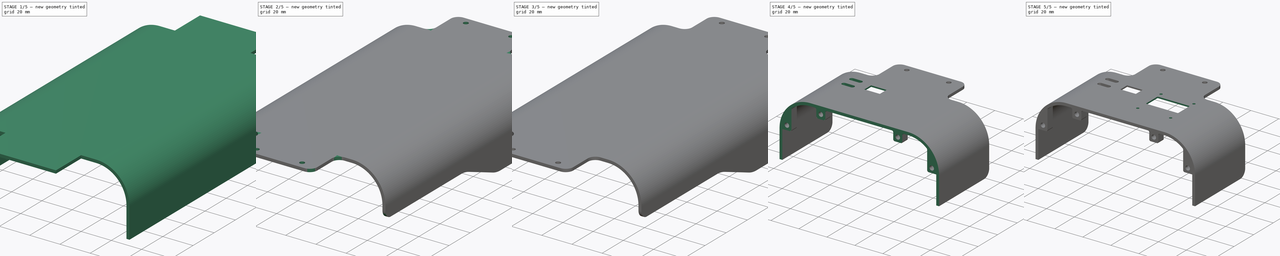
[diagram: build sequence overview — one tinted view per stage of 5, left to right]
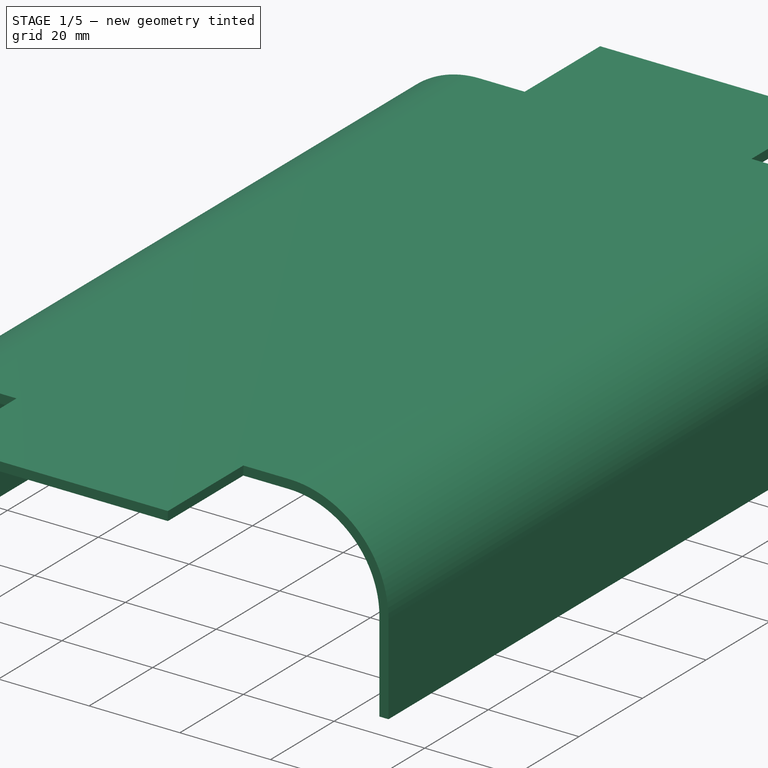
[diagram: stage 1 of 5 — iso view after this stage's code; geometry added in this stage tinted green]
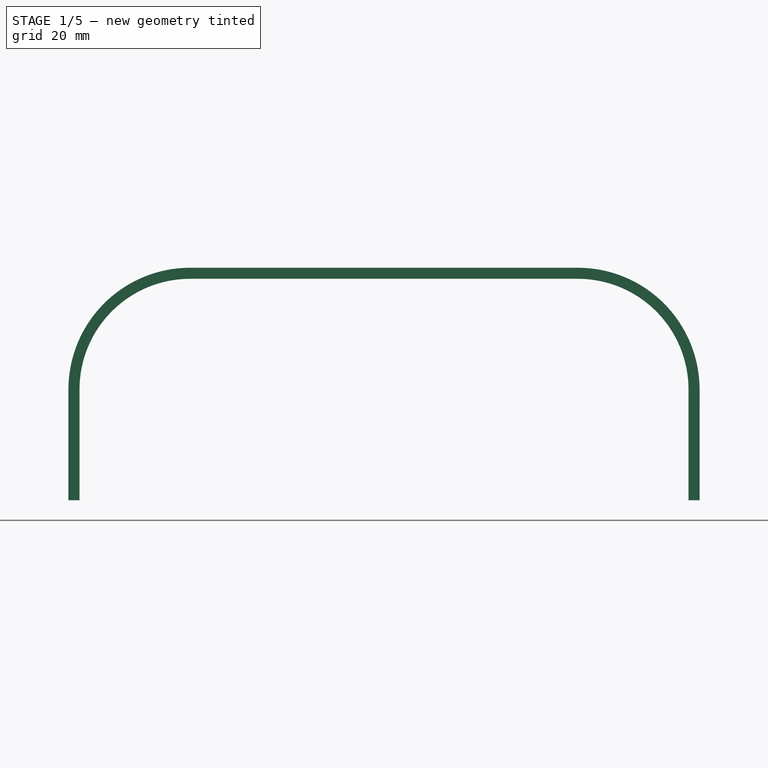
[diagram: stage 1 of 5 — front view after this stage's code; geometry added in this stage tinted green]
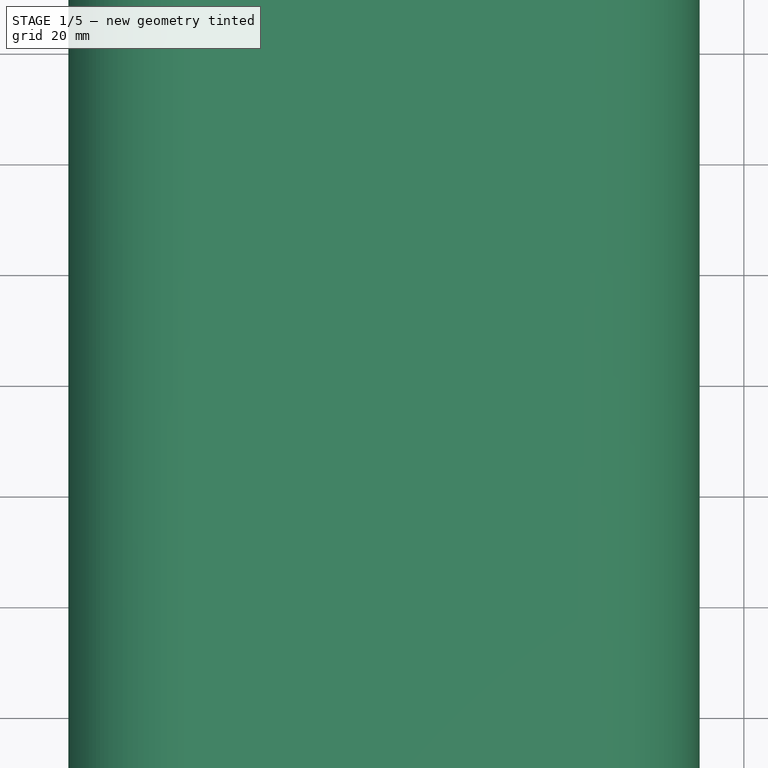
[diagram: stage 1 of 5 — top view after this stage's code; geometry added in this stage tinted green]
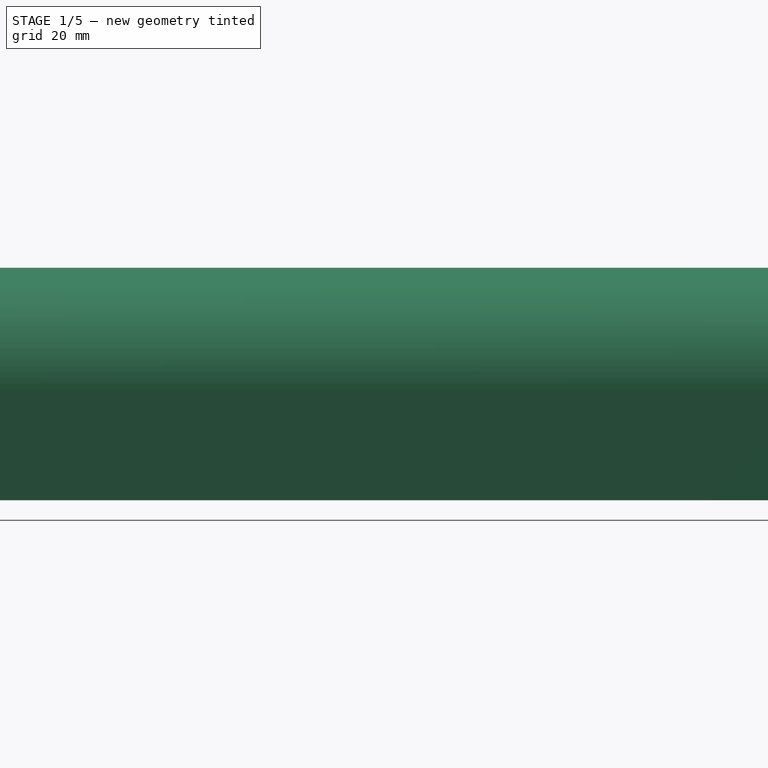
[diagram: stage 1 of 5 — right view after this stage's code; geometry added in this stage tinted green]
FCSTD DOCUMENT  (FreeCAD 0.19R22894 (Git))
Label: Top_Cover_Split_Rear_with_OLED
License: All rights reserved
LicenseURL: http://en.wikipedia.org/wiki/All_rights_reserved
objects: Sketcher::SketchObject×16, PartDesign::Pocket×13, PartDesign::Pad×5, PartDesign::Fillet×5, PartDesign::Thickness×1, PartDesign::Chamfer×1, PartDesign::Body×1
note: 67 computed .brp shape members not serialized (recipe doc carries the construction recipe); baked Part::Feature solids carry a one-line shape summary decoded from their .brp

FEATURE [Sketcher::SketchObject] Sketch459
  MapMode = 5
  Placement = pos=(0,0,0) rot=(1,0,0;1.5708rad)
  Support = -> [XZ_Plane232]
  sketch-geometry (6):
    g0: LineSegment StartX=20 StartY=40 StartZ=0 EndX=90 EndY=40 EndZ=0
    g1: LineSegment StartX=110 StartY=20 StartZ=0 EndX=110 EndY=0 EndZ=0
    g2: LineSegment StartX=110 StartY=0 StartZ=0 EndX=0 EndY=0 EndZ=0
    g3: LineSegment StartX=0 StartY=0 StartZ=0 EndX=0 EndY=20 EndZ=0
    g4: ArcOfCircle CenterX=20 CenterY=20 CenterZ=0 NormalX=0 NormalY=0 NormalZ=1 AngleXU=0 Radius=20 StartAngle=1.5708 EndAngle=3.14159
    g5: ArcOfCircle CenterX=90 CenterY=20 CenterZ=0 NormalX=0 NormalY=0 NormalZ=1 AngleXU=0 Radius=20 StartAngle=0 EndAngle=1.5708
  constraints (15):
    c: Coincident(g1,g2)
    c: Coincident(g2,g3)
    c: Horizontal(g0)
    c: Horizontal(g2)
    c: Vertical(g1)
    c: Vertical(g3)
    c: Tangent(g3,g4) = 1.5708
    c: Tangent(g0,g4) = 1.5708
    c: Tangent(g0,g5) = 1.5708
    c: Tangent(g1,g5) = 1.5708
    c: DistanceX(g2,g2) = 110
    c: Equal(g5,g4)
    c: Radius(g4) = 20
    c: Coincident(g2,g-1)
    c: DistanceY(g2,g0) = 40
FEATURE [PartDesign::Pad] Pad232  label="Baseplate024"
  AllowMultiFace = false
  Direction = (1,1,1)
  Length = 160
  Length2 = 100
  Placement = pos=(0,0,0) rot=(1,0,0;1.5708rad)
  Profile = -> Sketch459
  Reversed = true
  Type = 0
FEATURE [PartDesign::Thickness] Thickness005
  Base = -> Pad232 [Face7,Face8,Face2]
  BaseFeature = -> Pad232
  Intersection = false
  Join = 0
  Mode = 0
  SupportTransform = false
  Value = 2
FEATURE [PartDesign::Pad] Pad231  label="Front Expansion004"
  AllowMultiFace = false
  BaseFeature = -> Thickness005
  Direction = (1,1,1)
  Length = 23.75
  Length2 = 100
  Profile = -> Thickness005 [Face6]
  Type = 0
FEATURE [PartDesign::Pad] Pad230  label="Rear Expansion004"
  AllowMultiFace = false
  BaseFeature = -> Pad231
  Direction = (1,1,1)
  Length = 23.75
  Length2 = 100
  Profile = -> Pad231 [Face5]
  Type = 0
FEATURE [Sketcher::SketchObject] Sketch462
  AttachmentOffset = pos=(0,0,-108.85) rot=(0,0,1;0rad)
  MapMode = 5
  Placement = pos=(0,108.85,2.42e-14) rot=(1,0,0;1.5708rad)
  Support = -> [XZ_Plane232]
  sketch-geometry (4):
    g0: LineSegment StartX=-2 StartY=0 StartZ=0 EndX=112 EndY=0 EndZ=0
    g1: LineSegment StartX=112 StartY=0 StartZ=0 EndX=112 EndY=42 EndZ=0
    g2: LineSegment StartX=112 StartY=42 StartZ=0 EndX=-2 EndY=42 EndZ=0
    g3: LineSegment StartX=-2 StartY=42 StartZ=0 EndX=-2 EndY=0 EndZ=0
  constraints (12):
    c: Coincident(g0,g1)
    c: Coincident(g1,g2)
    c: Coincident(g2,g3)
    c: Coincident(g3,g0)
    c: Horizontal(g0)
    c: Horizontal(g2)
    c: Vertical(g1)
    c: Vertical(g3)
    c: PointOnObject(g0,g-1)
    c: DistanceX(g0,g-1) = 2
    c: DistanceY(g3,g3) = 42
    c: DistanceX(g2,g2) = 114
FEATURE [Sketcher::SketchObject] Sketch453
  AttachmentOffset = pos=(0,0,-108.85) rot=(0,0,1;0rad)
  MapMode = 5
  Placement = pos=(0,108.85,2.42e-14) rot=(1,0,0;1.5708rad)
  Support = -> [XZ_Plane232]
  sketch-geometry (14):
    g0: LineSegment StartX=0 StartY=20 StartZ=0 EndX=6.5 EndY=20 EndZ=0
    g1: LineSegment StartX=6.5 StartY=20 StartZ=0 EndX=6.5 EndY=34.7564 EndZ=0
    g2: LineSegment StartX=24.25 StartY=40 StartZ=0 EndX=24.25 EndY=33.5 EndZ=0
    g3: LineSegment StartX=24.25 StartY=33.5 StartZ=0 EndX=30.75 EndY=33.5 EndZ=0
    g4: LineSegment StartX=30.75 StartY=33.5 StartZ=0 EndX=30.75 EndY=40 EndZ=0
    g5: LineSegment StartX=30.75 StartY=40 StartZ=0 EndX=24.25 EndY=40 EndZ=0
    g6: LineSegment StartX=79.25 StartY=40 StartZ=0 EndX=79.25 EndY=33.5 EndZ=0
    g7: LineSegment StartX=79.25 StartY=33.5 StartZ=0 EndX=85.75 EndY=33.5 EndZ=0
    g8: LineSegment StartX=85.75 StartY=33.5 StartZ=0 EndX=85.75 EndY=40 EndZ=0
    g9: LineSegment StartX=85.75 StartY=40 StartZ=0 EndX=79.25 EndY=40 EndZ=0
    g10: LineSegment StartX=103.5 StartY=34.7564 StartZ=0 EndX=103.5 EndY=20 EndZ=0
    g11: LineSegment StartX=103.5 StartY=20 StartZ=0 EndX=110 EndY=20 EndZ=0
    g12: ArcOfCircle CenterX=20 CenterY=20 CenterZ=0 NormalX=0 NormalY=0 NormalZ=1 AngleXU=0 Radius=20 StartAngle=2.31176 EndAngle=3.14159
    g13: ArcOfCircle CenterX=90 CenterY=20 CenterZ=0 NormalX=0 NormalY=0 NormalZ=1 AngleXU=0 Radius=20 StartAngle=-9e-16 EndAngle=0.829832
  constraints (46):
    c: PointOnObject(g0,g-2)
    c: Horizontal(g0)
    c: Coincident(g0,g1)
    c: Vertical(g1)
    c: Coincident(g2,g3)
    c: Horizontal(g3)
    c: Coincident(g3,g4)
    c: Coincident(g4,g5)
    c: Horizontal(g5)
    c: Coincident(g6,g7)
    c: Coincident(g7,g8)
    c: Coincident(g8,g9)
    c: Coincident(g9,g6)
    c: Vertical(g10)
    c: Coincident(g10,g11)
    c: Horizontal(g11)
    c: Coincident(g12,g0)
    c: Coincident(g12,g1)
    c: Coincident(g13,g10)
    c: Coincident(g13,g11)
    c: Horizontal(g7)
    c: Horizontal(g9)
    c: Vertical(g8)
    c: Vertical(g6)
    c: Vertical(g4)
    c: Vertical(g2)
    c: Radius(g12) = 20
    c: Equal(g13,g12)
    c: DistanceX(g3,g3) = 6.5
    c: Equal(g0,g3)
    c: Equal(g3,g7)
    c: Equal(g7,g11)
    c: Horizontal(g0,g10)
    c: Horizontal(g6,g3)
    c: Equal(g4,g6)
    c: Perpendicular(g12,g0)
    c: Perpendicular(g13,g11)
    c: DistanceY(g-1,g0) = 20
    c: Coincident(g5,g2)
    c: Equal(g4,g5)
    c: DistanceX(g3,g6) = 48.5
    c: DistanceY(g-1,g8) = 40
    c: DistanceX(g-1,g2) = 24.25
    c: DistanceX(g0,g11) = 110
    c: DistanceX(g1,g2) = 17.75
    c: DistanceX(g7,g10) = 17.75
FEATURE [Sketcher::SketchObject] Sketch457
  MapMode = 5
  Placement = pos=(0,-9.2e-15,42) rot=(0,0,1;0rad)
  Support = -> [Pad230]
  sketch-geometry (16):
    g0: LineSegment StartX=-2 StartY=0 StartZ=0 EndX=30 EndY=0 EndZ=0
    g1: LineSegment StartX=30 StartY=0 StartZ=0 EndX=30 EndY=-23.75 EndZ=0
    g2: LineSegment StartX=30 StartY=-23.75 StartZ=0 EndX=-2 EndY=-23.75 EndZ=0
    g3: LineSegment StartX=-2 StartY=-23.75 StartZ=0 EndX=-2 EndY=0 EndZ=0
    g4: LineSegment StartX=112 StartY=0 StartZ=0 EndX=80 EndY=0 EndZ=0
    g5: LineSegment StartX=80 StartY=0 StartZ=0 EndX=80 EndY=-23.75 EndZ=0
    g6: LineSegment StartX=80 StartY=-23.75 StartZ=0 EndX=112 EndY=-23.75 EndZ=0
    g7: LineSegment StartX=112 StartY=-23.75 StartZ=0 EndX=112 EndY=0 EndZ=0
    g8: LineSegment StartX=-2 StartY=160 StartZ=0 EndX=30 EndY=160 EndZ=0
    g9: LineSegment StartX=30 StartY=160 StartZ=0 EndX=30 EndY=183.75 EndZ=0
    g10: LineSegment StartX=30 StartY=183.75 StartZ=0 EndX=-2 EndY=183.75 EndZ=0
    g11: LineSegment StartX=-2 StartY=183.75 StartZ=0 EndX=-2 EndY=160 EndZ=0
    g12: LineSegment StartX=112 StartY=183.75 StartZ=0 EndX=80 EndY=183.75 EndZ=0
    g13: LineSegment StartX=80 StartY=183.75 StartZ=0 EndX=80 EndY=160 EndZ=0
    g14: LineSegment StartX=80 StartY=160 StartZ=0 EndX=112 EndY=160 EndZ=0
    g15: LineSegment StartX=112 StartY=160 StartZ=0 EndX=112 EndY=183.75 EndZ=0
  constraints (48):
    c: Coincident(g0,g1)
    c: Coincident(g1,g2)
    c: Coincident(g2,g3)
    c: Coincident(g3,g0)
    c: Horizontal(g0)
    c: Horizontal(g2)
    c: Vertical(g1)
    c: Vertical(g3)
    c: PointOnObject(g0,g-1)
    c: Coincident(g4,g5)
    c: Coincident(g5,g6)
    c: Coincident(g6,g7)
    c: Coincident(g7,g4)
    c: Horizontal(g4)
    c: Horizontal(g6)
    c: Vertical(g5)
    c: Vertical(g7)
    c: Coincident(g8,g9)
    c: Coincident(g9,g10)
    c: Coincident(g10,g11)
    c: Coincident(g11,g8)
    c: Horizontal(g8)
    c: Horizontal(g10)
    c: Vertical(g9)
    c: Vertical(g11)
    c: Coincident(g12,g13)
    c: Coincident(g13,g14)
    c: Coincident(g14,g15)
    c: Coincident(g15,g12)
    c: Horizontal(g12)
    c: Horizontal(g14)
    c: Vertical(g13)
    c: Vertical(g15)
    c: Horizontal(g9,g12)
    c: Equal(g9,g13)
    c: Equal(g10,g12)
    c: Equal(g0,g8)
    c: Equal(g4,g14)
    c: Horizontal(g0,g4)
    c: Equal(g5,g1)
    c: DistanceX(g0,g4) = 50
    c: DistanceX(g0,g0) = 32
    c: DistanceY(g3,g3) = 23.75
    c: DistanceX(g0,g-1) = 2
    c: Vertical(g0,g8)
    c: Vertical(g13,g4)
    c: DistanceY(g0,g8) = 160
    c: Equal(g9,g1)
FEATURE [PartDesign::Pocket] Pocket234  label="Shoulders004"
  AllowMultiFace = false
  BaseFeature = -> Pad230
  Length = 42
  Length2 = 100
  Profile = -> Sketch457
  Type = 0
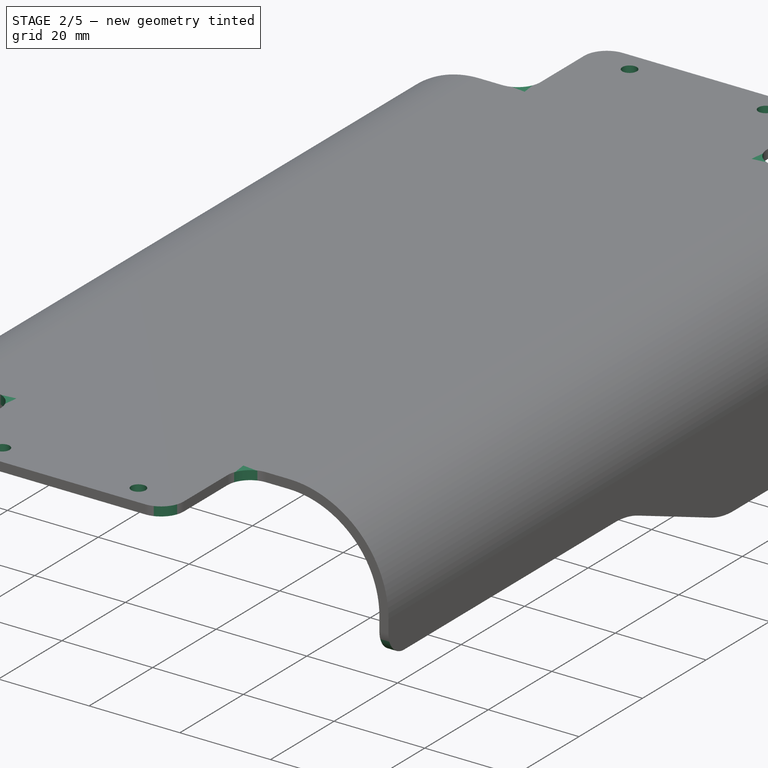
[diagram: stage 2 of 5 — iso view after this stage's code; geometry added in this stage tinted green]
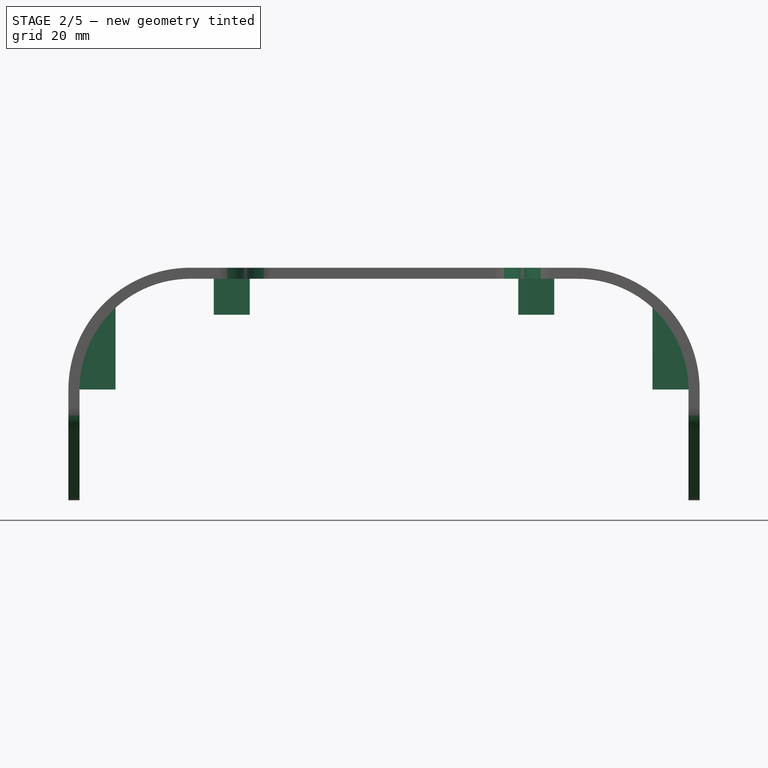
[diagram: stage 2 of 5 — front view after this stage's code; geometry added in this stage tinted green]
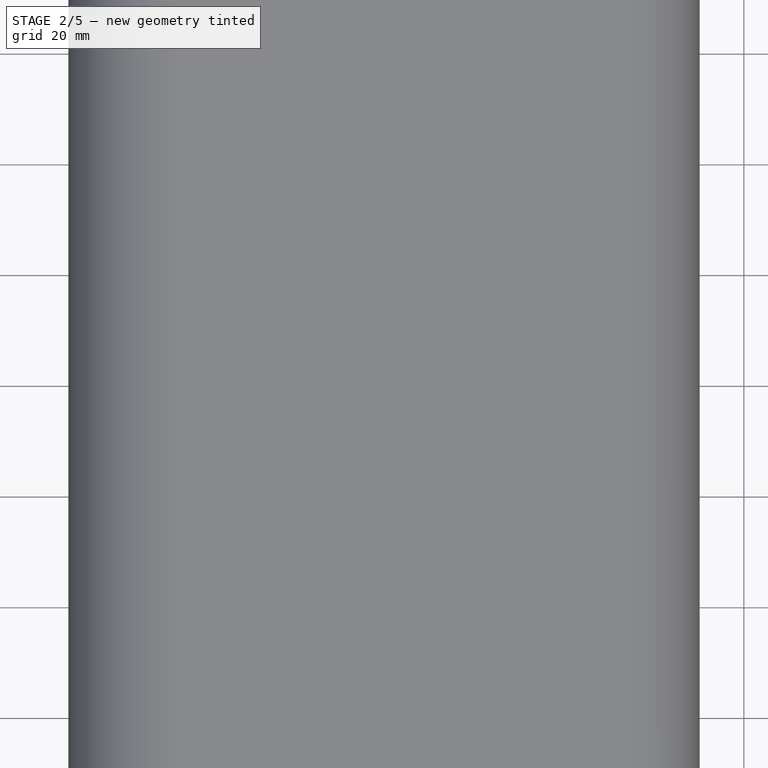
[diagram: stage 2 of 5 — top view after this stage's code; geometry added in this stage tinted green]
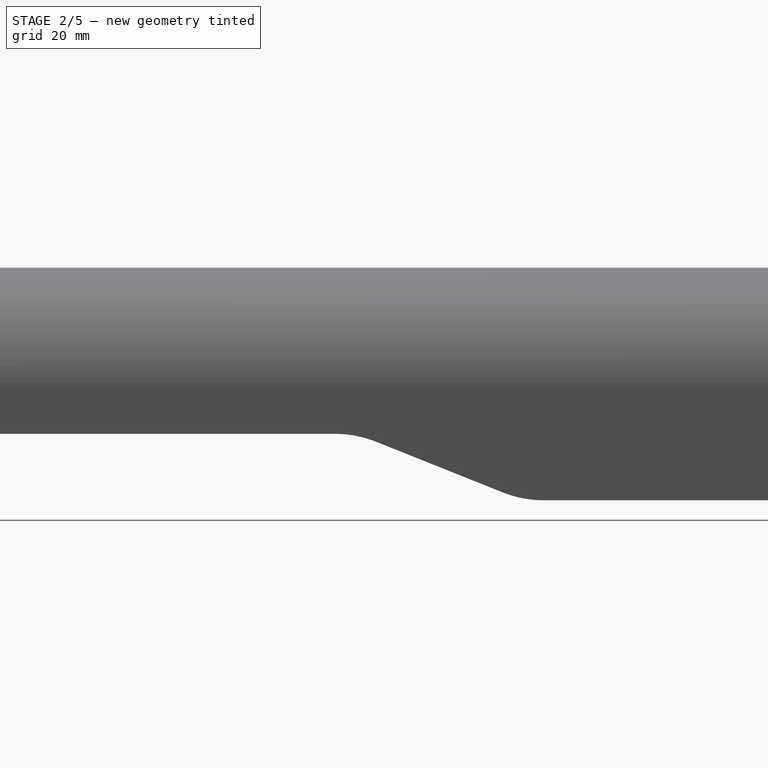
[diagram: stage 2 of 5 — right view after this stage's code; geometry added in this stage tinted green]
FEATURE [Sketcher::SketchObject] Sketch461
  MapMode = 5
  Placement = pos=(112,0,0) rot=(0.57735,0.57735,0.57735;2.0944rad)
  Support = -> [Pocket234]
  sketch-geometry (6):
    g0: LineSegment StartX=0 StartY=-5 StartZ=0 EndX=-2e-16 EndY=12 EndZ=0
    g1: LineSegment StartX=-2e-16 StartY=12 StartZ=0 EndX=75 EndY=12 EndZ=0
    g2: LineSegment StartX=75 StartY=12 StartZ=0 EndX=105 EndY=0 EndZ=0
    g3: LineSegment StartX=105 StartY=0 StartZ=0 EndX=160 EndY=0 EndZ=0
    g4: LineSegment StartX=160 StartY=0 StartZ=0 EndX=160 EndY=-5 EndZ=0
    g5: LineSegment StartX=160 StartY=-5 StartZ=0 EndX=0 EndY=-5 EndZ=0
  constraints (18):
    c: PointOnObject(g0,g-2)
    c: Coincident(g0,g1)
    c: Horizontal(g1)
    c: Coincident(g1,g2)
    c: PointOnObject(g2,g-1)
    c: Coincident(g2,g3)
    c: Horizontal(g3)
    c: Coincident(g3,g4)
    c: Vertical(g4)
    c: Coincident(g4,g5)
    c: PointOnObject(g5,g-2)
    c: Horizontal(g5)
    c: Coincident(g0,g5)
    c: DistanceX(g1,g2) = 30
    c: DistanceX(g5,g5) = 160
    c: DistanceX(g1,g1) = 75
    c: DistanceY(g-1,g0) = 12
    c: DistanceY(g4,g4) = 5
FEATURE [PartDesign::Pocket] Pocket233  label="Side Detailing004"
  AllowMultiFace = false
  BaseFeature = -> Pocket234
  Length = 114
  Length2 = 100
  Profile = -> Sketch461
  Type = 0
FEATURE [Sketcher::SketchObject] Sketch460
  MapMode = 5
  Placement = pos=(0,-9.2e-15,42) rot=(0,0,1;0rad)
  Support = -> [Pocket233]
  sketch-geometry (4):
    g0: Circle CenterX=40 CenterY=-18.75 CenterZ=0 NormalX=0 NormalY=0 NormalZ=1 AngleXU=0 Radius=1.6
    g1: Circle CenterX=70 CenterY=-18.75 CenterZ=0 NormalX=0 NormalY=0 NormalZ=1 AngleXU=0 Radius=1.6
    g2: Circle CenterX=40 CenterY=178.75 CenterZ=0 NormalX=0 NormalY=0 NormalZ=1 AngleXU=0 Radius=1.6
    g3: Circle CenterX=70 CenterY=178.75 CenterZ=0 NormalX=0 NormalY=0 NormalZ=1 AngleXU=0 Radius=1.6
  constraints (12):
    c: DistanceX(g2,g3) = 30
    c: Equal(g2,g3)
    c: Equal(g3,g0)
    c: Equal(g0,g1)
    c: Horizontal(g2,g3)
    c: Horizontal(g0,g1)
    c: Vertical(g1,g3)
    c: Vertical(g0,g2)
    c: DistanceY(g0,g-1) = 18.75
    c: DistanceX(g-1,g0) = 40
    c: DistanceY(g-1,g2) = 178.75
    c: Radius(g3) = 1.6
FEATURE [PartDesign::Pocket] Pocket235  label="Screwholes007"
  AllowMultiFace = false
  BaseFeature = -> Pocket233
  Length = 2
  Length2 = 100
  Profile = -> Sketch460
  Type = 0
FEATURE [PartDesign::Fillet] Fillet083  label="Round Corners004"
  Base = -> Pocket235 [Edge35,Edge66,Edge48,Edge12,Edge18,Edge44,Edge25,Edge76,Edge57,Edge60,Edge45,Edge9]
  BaseFeature = -> Pocket235
  Radius = 5
  SupportTransform = false
FEATURE [PartDesign::Fillet] Fillet084  label="Round Side Details004"
  Base = -> Fillet083 [Edge21,Edge29,Edge131,Edge132]
  BaseFeature = -> Fillet083
  Radius = 20
  SupportTransform = false
FEATURE [PartDesign::Pad] Pad229  label="Screwpads004"
  AllowMultiFace = false
  BaseFeature = -> Fillet084
  Direction = (1,1,1)
  Length = 5.5
  Length2 = 5.5
  Profile = -> Sketch453
  Type = 4
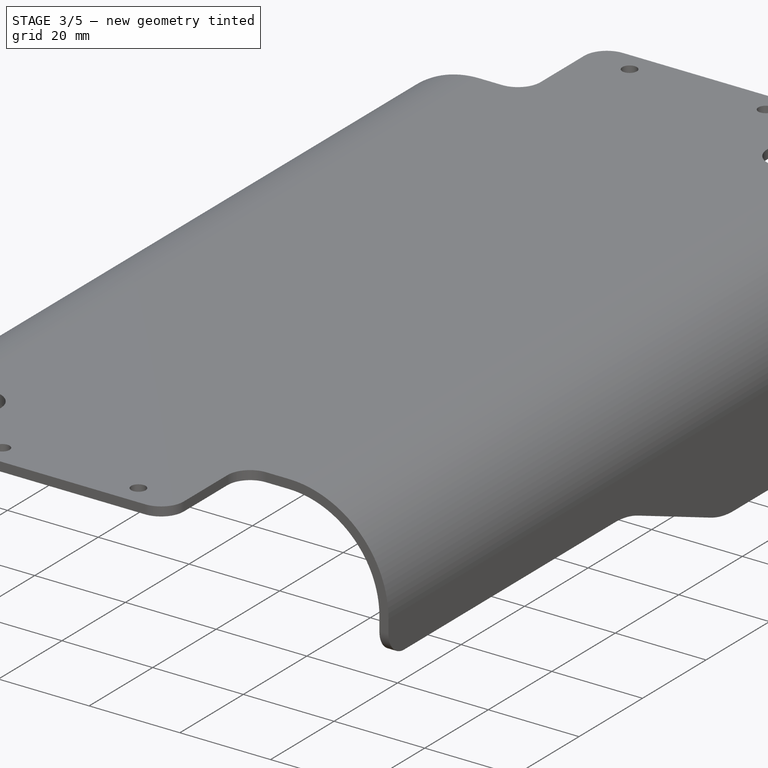
[diagram: stage 3 of 5 — iso view after this stage's code; geometry added in this stage tinted green]
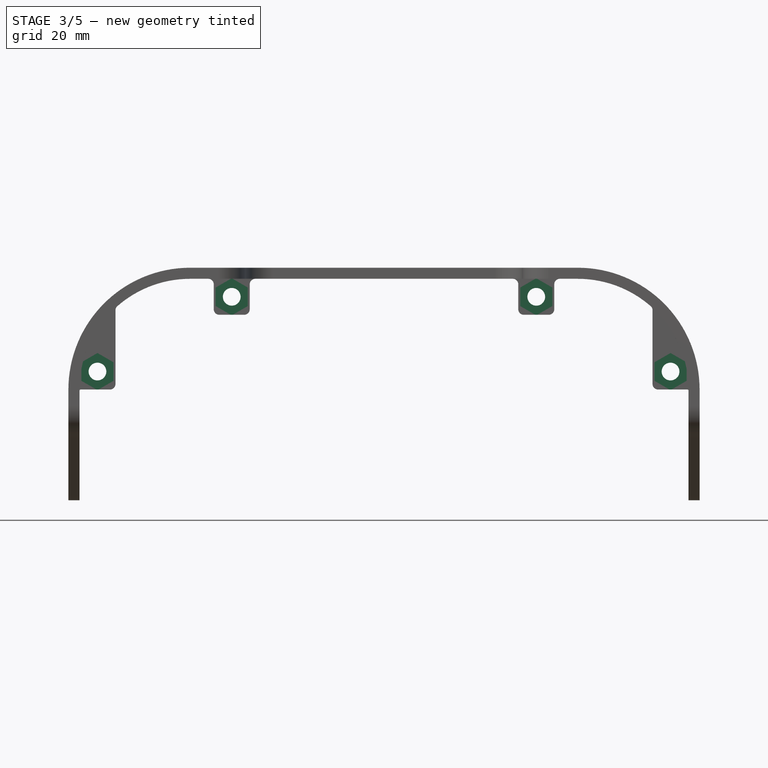
[diagram: stage 3 of 5 — front view after this stage's code; geometry added in this stage tinted green]
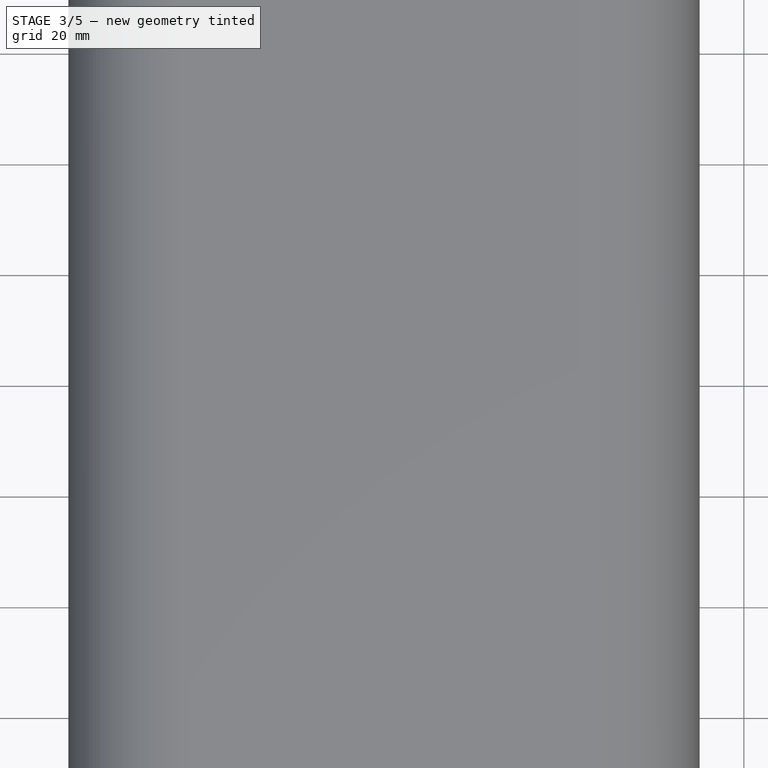
[diagram: stage 3 of 5 — top view after this stage's code; geometry added in this stage tinted green]
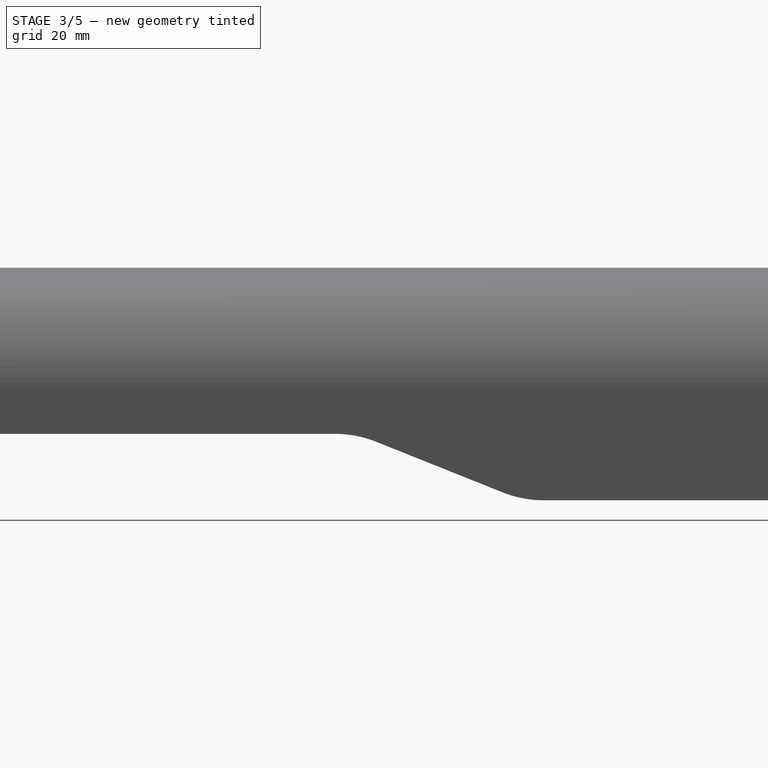
[diagram: stage 3 of 5 — right view after this stage's code; geometry added in this stage tinted green]
FEATURE [PartDesign::Fillet] Fillet082  label="Smooth Screwpad Edges004"
  Base = -> Pad229 [Edge35,Edge33,Edge137,Edge141,Edge145,Edge149,Edge182,Edge77,Edge73,Edge71,Edge75,Edge123]
  BaseFeature = -> Pad229
  Radius = 1
  SupportTransform = false
FEATURE [PartDesign::Fillet] Fillet085  label="Smooth Screwpad Edges Side Details004"
  Base = -> Fillet082 [Edge23,Edge202]
  BaseFeature = -> Fillet082
  Radius = 0.2
  SupportTransform = false
FEATURE [Sketcher::SketchObject] Sketch463
  MapMode = 5
  Placement = pos=(-8.12e-14,114.35,8.35e-14) rot=(0,0.707107,0.707107;3.14159rad)
  Support = -> [Fillet085]
  sketch-geometry (4):
    g0: Circle CenterX=-106.75 CenterY=23.25 CenterZ=0 NormalX=0 NormalY=0 NormalZ=1 AngleXU=0 Radius=1.6
    g1: Circle CenterX=-82.5 CenterY=36.75 CenterZ=0 NormalX=0 NormalY=0 NormalZ=1 AngleXU=0 Radius=1.6
    g2: Circle CenterX=-27.5 CenterY=36.75 CenterZ=0 NormalX=0 NormalY=0 NormalZ=1 AngleXU=0 Radius=1.6
    g3: Circle CenterX=-3.25 CenterY=23.25 CenterZ=0 NormalX=0 NormalY=0 NormalZ=1 AngleXU=0 Radius=1.6
  constraints (12):
    c: Equal(g0,g1)
    c: Equal(g1,g2)
    c: Equal(g2,g3)
    c: DistanceX(g1,g2) = 55
    c: DistanceX(g3,g-1) = 3.25
    c: DistanceY(g-1,g3) = 23.25
    c: DistanceX(g0,g3) = 103.5
    c: Horizontal(g3,g0)
    c: Horizontal(g1,g2)
    c: DistanceX(g2,g-1) = 27.5
    c: DistanceY(g-1,g2) = 36.75
    c: Radius(g3) = 1.6
FEATURE [PartDesign::Pocket] Pocket230  label="Screwholes Connection004"
  AllowMultiFace = false
  BaseFeature = -> Fillet085
  Length = 11
  Length2 = 100
  Profile = -> Sketch463
  Type = 0
FEATURE [Sketcher::SketchObject] Sketch456
  MapMode = 5
  Placement = pos=(-8.12e-14,114.35,8.35e-14) rot=(0,0.707107,0.707107;3.14159rad)
  Support = -> [Pocket230]
  sketch-geometry (4):
    g0: Circle CenterX=-106.75 CenterY=23.25 CenterZ=0 NormalX=0 NormalY=0 NormalZ=1 AngleXU=0 Radius=2.85
    g1: Circle CenterX=-82.5 CenterY=36.75 CenterZ=0 NormalX=0 NormalY=0 NormalZ=1 AngleXU=0 Radius=2.85
    g2: Circle CenterX=-27.5 CenterY=36.75 CenterZ=0 NormalX=0 NormalY=0 NormalZ=1 AngleXU=0 Radius=2.85
    g3: Circle CenterX=-3.25 CenterY=23.25 CenterZ=0 NormalX=0 NormalY=0 NormalZ=1 AngleXU=0 Radius=2.85
  constraints (12):
    c: Equal(g0,g1)
    c: Equal(g1,g2)
    c: Equal(g2,g3)
    c: Radius(g3) = 2.85
    c: DistanceX(g3,g-1) = 3.25
    c: Horizontal(g3,g0)
    c: Horizontal(g1,g2)
    c: DistanceX(g0,g3) = 103.5
    c: DistanceX(g1,g2) = 55
    c: DistanceY(g-1,g2) = 36.75
    c: DistanceX(g2,g-1) = 27.5
    c: DistanceY(g-1,g3) = 23.25
FEATURE [PartDesign::Pocket] Pocket228  label="Screwheads Connection004"
  AllowMultiFace = false
  BaseFeature = -> Pocket230
  Length = 3
  Length2 = 100
  Profile = -> Sketch456
  Type = 0
FEATURE [Sketcher::SketchObject] Sketch455
  MapMode = 5
  Placement = pos=(7.34e-14,103.35,7.54e-14) rot=(1,0,0;1.5708rad)
  Support = -> [Pocket228]
  sketch-geometry (28):
    g0: LineSegment StartX=3.25 StartY=26.5986 StartZ=0 EndX=0.35 EndY=24.9243 EndZ=0
    g1: LineSegment StartX=0.35 StartY=24.9243 StartZ=0 EndX=0.35 EndY=21.5757 EndZ=0
    g2: LineSegment StartX=0.35 StartY=21.5757 StartZ=0 EndX=3.25 EndY=19.9014 EndZ=0
    g3: LineSegment StartX=3.25 StartY=19.9014 StartZ=0 EndX=6.15 EndY=21.5757 EndZ=0
    g4: LineSegment StartX=6.15 StartY=21.5757 StartZ=0 EndX=6.15 EndY=24.9243 EndZ=0
    g5: LineSegment StartX=6.15 StartY=24.9243 StartZ=0 EndX=3.25 EndY=26.5986 EndZ=0
    g6: Circle [constr] CenterX=3.25 CenterY=23.25 CenterZ=0 NormalX=0 NormalY=0 NormalZ=1 AngleXU=0 Radius=3.34863
    g7: LineSegment StartX=27.5 StartY=40.0986 StartZ=0 EndX=24.6 EndY=38.4243 EndZ=0
    g8: LineSegment StartX=24.6 StartY=38.4243 StartZ=0 EndX=24.6 EndY=35.0757 EndZ=0
    g9: LineSegment StartX=24.6 StartY=35.0757 StartZ=0 EndX=27.5 EndY=33.4014 EndZ=0
    g10: LineSegment StartX=27.5 StartY=33.4014 StartZ=0 EndX=30.4 EndY=35.0757 EndZ=0
    g11: LineSegment StartX=30.4 StartY=35.0757 StartZ=0 EndX=30.4 EndY=38.4243 EndZ=0
    g12: LineSegment StartX=30.4 StartY=38.4243 StartZ=0 EndX=27.5 EndY=40.0986 EndZ=0
    g13: Circle [constr] CenterX=27.5 CenterY=36.75 CenterZ=0 NormalX=0 NormalY=0 NormalZ=1 AngleXU=0 Radius=3.34863
    g14: LineSegment StartX=85.4 StartY=38.4243 StartZ=0 EndX=82.5 EndY=40.0986 EndZ=0
    g15: LineSegment StartX=82.5 StartY=40.0986 StartZ=0 EndX=79.6 EndY=38.4243 EndZ=0
    g16: LineSegment StartX=79.6 StartY=38.4243 StartZ=0 EndX=79.6 EndY=35.0757 EndZ=0
    g17: LineSegment StartX=79.6 StartY=35.0757 StartZ=0 EndX=82.5 EndY=33.4014 EndZ=0
    g18: LineSegment StartX=82.5 StartY=33.4014 StartZ=0 EndX=85.4 EndY=35.0757 EndZ=0
    g19: LineSegment StartX=85.4 StartY=35.0757 StartZ=0 EndX=85.4 EndY=38.4243 EndZ=0
    g20: Circle [constr] CenterX=82.5 CenterY=36.75 CenterZ=0 NormalX=0 NormalY=0 NormalZ=1 AngleXU=0 Radius=3.34863
    g21: LineSegment StartX=106.75 StartY=26.5986 StartZ=0 EndX=103.85 EndY=24.9243 EndZ=0
    g22: LineSegment StartX=103.85 StartY=24.9243 StartZ=0 EndX=103.85 EndY=21.5757 EndZ=0
    g23: LineSegment StartX=103.85 StartY=21.5757 StartZ=0 EndX=106.75 EndY=19.9014 EndZ=0
    g24: LineSegment StartX=106.75 StartY=19.9014 StartZ=0 EndX=109.65 EndY=21.5757 EndZ=0
    g25: LineSegment StartX=109.65 StartY=21.5757 StartZ=0 EndX=109.65 EndY=24.9243 EndZ=0
    g26: LineSegment StartX=109.65 StartY=24.9243 StartZ=0 EndX=106.75 EndY=26.5986 EndZ=0
    g27: Circle [constr] CenterX=106.75 CenterY=23.25 CenterZ=0 NormalX=0 NormalY=0 NormalZ=1 AngleXU=0 Radius=3.34863
  constraints (68):
    c: Coincident(g0,g1)
    c: Coincident(g1,g2)
    c: Coincident(g2,g3)
    c: Coincident(g3,g4)
    c: Coincident(g4,g5)
    c: Coincident(g5,g0)
    c: Equal(g0, g1-g5) x5
    c: PointOnObject(g0,g6)
    c: PointOnObject(g1,g6)
    c: PointOnObject(g2,g6)
    c: PointOnObject(g3,g6)
    c: PointOnObject(g4,g6)
    c: PointOnObject(g5,g6)
    c: Coincident(g7,g8)
    c: Coincident(g8,g9)
    c: Coincident(g9,g10)
    c: Coincident(g10,g11)
    c: Coincident(g11,g12)
    c: Coincident(g12,g7)
    c: Equal(g7, g8-g12) x5
    c: PointOnObject(g7,g13)
    c: PointOnObject(g8,g13)
    c: PointOnObject(g9,g13)
    c: PointOnObject(g10,g13)
    c: PointOnObject(g11,g13)
    c: PointOnObject(g12,g13)
    c: Coincident(g14,g15)
    c: Coincident(g15,g16)
    c: Coincident(g16,g17)
    c: Coincident(g17,g18)
    c: Coincident(g18,g19)
    c: Coincident(g19,g14)
    c: Equal(g14, g15-g19) x5
    c: PointOnObject(g14,g20)
    c: PointOnObject(g15,g20)
    c: PointOnObject(g16,g20)
    c: PointOnObject(g17,g20)
    c: PointOnObject(g18,g20)
    c: PointOnObject(g19,g20)
    c: Coincident(g21,g22)
    c: Coincident(g22,g23)
    c: Coincident(g23,g24)
    c: Coincident(g24,g25)
    c: Coincident(g25,g26)
    c: Coincident(g26,g21)
    c: Equal(g21, g22-g26) x5
    c: PointOnObject(g21,g27)
    c: PointOnObject(g22,g27)
    c: PointOnObject(g23,g27)
    c: PointOnObject(g24,g27)
    c: PointOnObject(g25,g27)
    c: PointOnObject(g26,g27)
    c: Equal(g6,g13)
    c: Equal(g13,g20)
    c: Equal(g20,g27)
    c: Vertical(g22)
    c: Vertical(g19)
    c: Vertical(g11)
    c: Vertical(g4)
    c: Horizontal(g27,g6)
    c: Horizontal(g13,g20)
    c: DistanceX(g13,g20) = 55
    c: DistanceX(g6,g27) = 103.5
    c: DistanceX(g-1,g6) = 3.25
    c: DistanceY(g-1,g6) = 23.25
    c: DistanceY(g-1,g13) = 36.75
    c: DistanceX(g-1,g13) = 27.5
    c: DistanceX(g0,g4) = 5.8
FEATURE [PartDesign::Pocket] Pocket227  label="Nutholes Connection004"
  AllowMultiFace = false
  BaseFeature = -> Pocket228
  Length = 2.5
  Length2 = 100
  Profile = -> Sketch455
  Type = 0
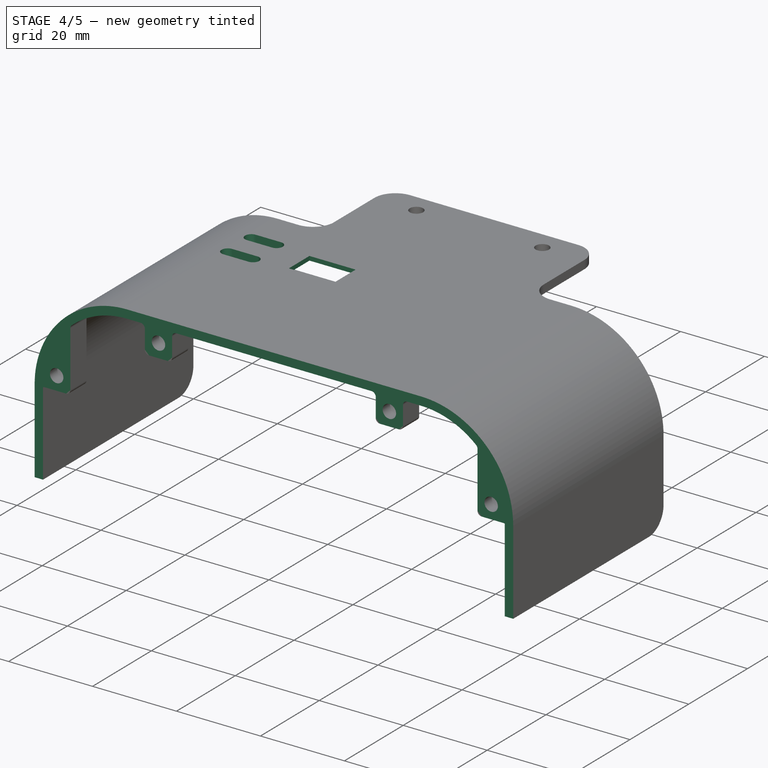
[diagram: stage 4 of 5 — iso view after this stage's code; geometry added in this stage tinted green]
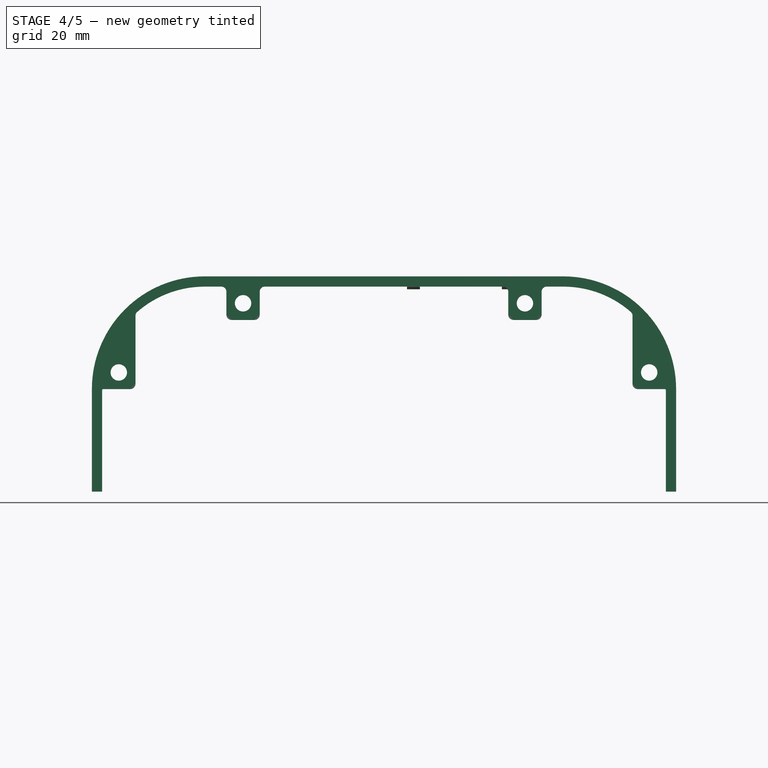
[diagram: stage 4 of 5 — front view after this stage's code; geometry added in this stage tinted green]
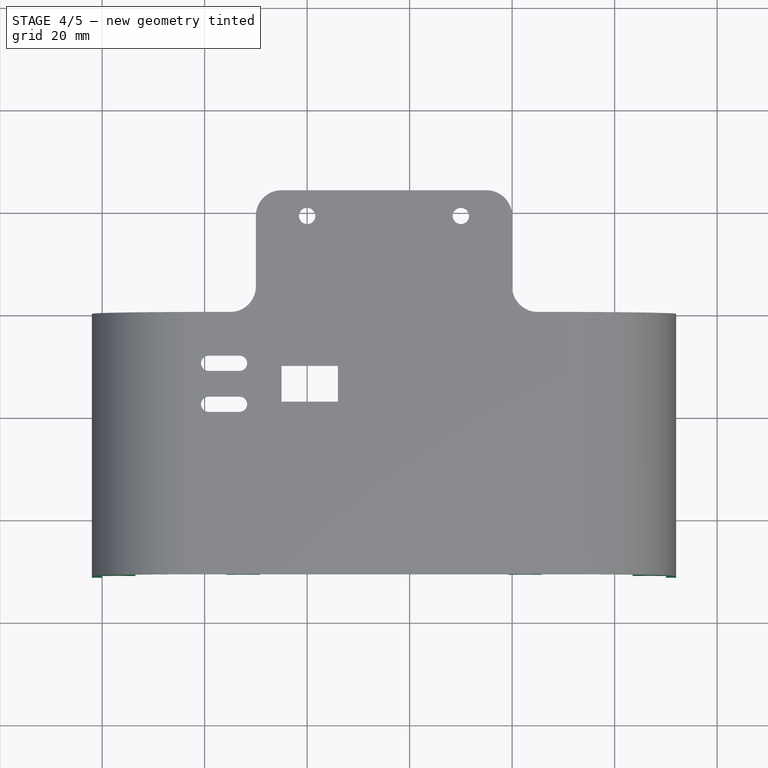
[diagram: stage 4 of 5 — top view after this stage's code; geometry added in this stage tinted green]
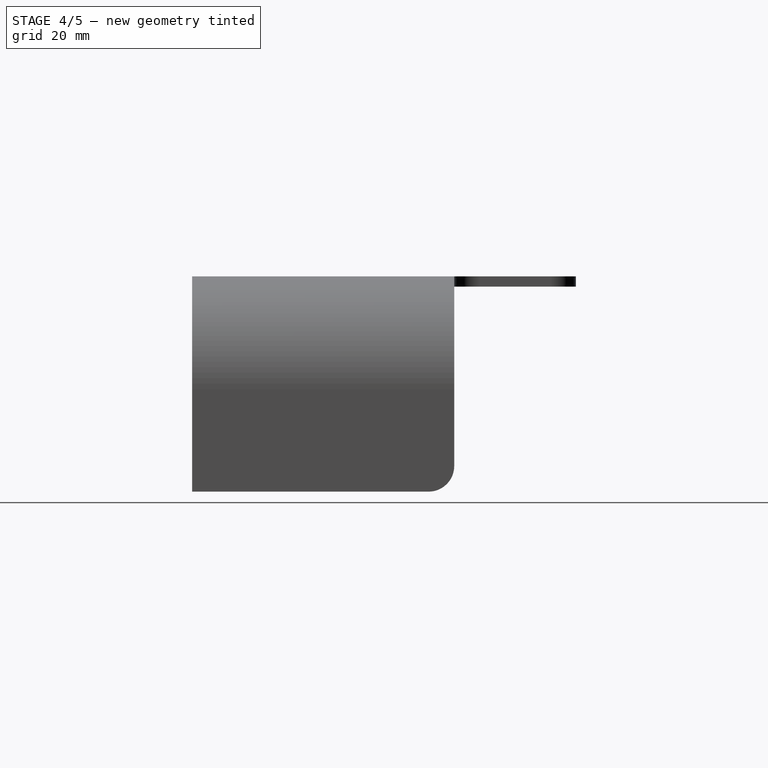
[diagram: stage 4 of 5 — right view after this stage's code; geometry added in this stage tinted green]
FEATURE [Sketcher::SketchObject] Sketch458
  MapMode = 5
  Placement = pos=(0,0,42) rot=(0,0,1;0rad)
  Support = -> [Pocket227]
  sketch-geometry (12):
    g0: ArcOfCircle CenterX=20.8 CenterY=150 CenterZ=0 NormalX=0 NormalY=0 NormalZ=1 AngleXU=0 Radius=1.5 StartAngle=1.5708 EndAngle=4.71239
    g1: ArcOfCircle CenterX=26.8 CenterY=150 CenterZ=0 NormalX=0 NormalY=0 NormalZ=1 AngleXU=0 Radius=1.5 StartAngle=4.71239 EndAngle=7.85398
    g2: LineSegment StartX=20.8 StartY=148.5 StartZ=0 EndX=26.8 EndY=148.5 EndZ=0
    g3: LineSegment StartX=20.8 StartY=151.5 StartZ=0 EndX=26.8 EndY=151.5 EndZ=0
    g4: ArcOfCircle CenterX=20.8 CenterY=142 CenterZ=0 NormalX=0 NormalY=0 NormalZ=1 AngleXU=0 Radius=1.5 StartAngle=1.5708 EndAngle=4.71239
    g5: ArcOfCircle CenterX=26.8 CenterY=142 CenterZ=0 NormalX=0 NormalY=0 NormalZ=1 AngleXU=0 Radius=1.5 StartAngle=4.71239 EndAngle=7.85398
    g6: LineSegment StartX=20.8 StartY=140.5 StartZ=0 EndX=26.8 EndY=140.5 EndZ=0
    g7: LineSegment StartX=20.8 StartY=143.5 StartZ=0 EndX=26.8 EndY=143.5 EndZ=0
    g8: LineSegment StartX=35 StartY=142.5 StartZ=0 EndX=46 EndY=142.5 EndZ=0
    g9: LineSegment StartX=46 StartY=142.5 StartZ=0 EndX=46 EndY=149.5 EndZ=0
    g10: LineSegment StartX=46 StartY=149.5 StartZ=0 EndX=35 EndY=149.5 EndZ=0
    g11: LineSegment StartX=35 StartY=149.5 StartZ=0 EndX=35 EndY=142.5 EndZ=0
  constraints (32):
    c: Tangent(g0,g3) = 1.5708
    c: Tangent(g0,g2) = -1.5708
    c: Tangent(g2,g1) = -1.5708
    c: Tangent(g3,g1) = 1.5708
    c: Horizontal(g2)
    c: Equal(g0,g1)
    c: Tangent(g4,g7) = 1.5708
    c: Tangent(g4,g6) = -1.5708
    c: Tangent(g6,g5) = -1.5708
    c: Tangent(g7,g5) = 1.5708
    c: Horizontal(g6)
    c: Equal(g4,g5)
    c: Vertical(g4,g0)
    c: Vertical(g5,g1)
    c: Equal(g1,g5)
    c: Radius(g5) = 1.5
    c: DistanceX(g3,g3) = 6
    c: DistanceY(g5,g1) = 8
    c: DistanceY(g-1,g1) = 150
    c: DistanceX(g-1,g0) = 20.8
    c: Coincident(g8,g9)
    c: Coincident(g9,g10)
    c: Coincident(g10,g11)
    c: Coincident(g11,g8)
    c: Horizontal(g8)
    c: Horizontal(g10)
    c: Vertical(g9)
    c: Vertical(g11)
    c: DistanceX(g5,g8) = 8.2
    c: DistanceY(g11,g11) = 7
    c: DistanceX(g10,g10) = 11
    c: DistanceY(g5,g8) = 0.5
FEATURE [PartDesign::Pocket] Pocket232  label="Charger and USB-Port001"
  AllowMultiFace = false
  BaseFeature = -> Pocket227
  Length = 5
  Length2 = 100
  Profile = -> Sketch458
  Type = 0
FEATURE [Sketcher::SketchObject] Sketch454
  MapMode = 5
  Placement = pos=(0,0,40) rot=(1,0,0;3.14159rad)
  Support = -> [Pocket232]
  sketch-geometry (4):
    g0: LineSegment StartX=32 StartY=-152.5 StartZ=0 EndX=49 EndY=-152.5 EndZ=0
    g1: LineSegment StartX=49 StartY=-152.5 StartZ=0 EndX=49 EndY=-139.5 EndZ=0
    g2: LineSegment StartX=49 StartY=-139.5 StartZ=0 EndX=32 EndY=-139.5 EndZ=0
    g3: LineSegment StartX=32 StartY=-139.5 StartZ=0 EndX=32 EndY=-152.5 EndZ=0
  constraints (12):
    c: Coincident(g0,g1)
    c: Coincident(g1,g2)
    c: Coincident(g2,g3)
    c: Coincident(g3,g0)
    c: Horizontal(g0)
    c: Horizontal(g2)
    c: Vertical(g1)
    c: Vertical(g3)
    c: DistanceY(g3,g3) = 13
    c: DistanceX(g0,g0) = 17
    c: DistanceX(g-1,g2) = 32
    c: DistanceY(g2,g-1) = 139.5
FEATURE [PartDesign::Pocket] Pocket229  label="Charger Alignment001"
  AllowMultiFace = false
  BaseFeature = -> Pocket232
  Length = 1
  Length2 = 100
  Profile = -> Sketch454
  Type = 0
FEATURE [PartDesign::Pocket] Pocket231  label="Remove Front"
  AllowMultiFace = false
  BaseFeature = -> Pocket229
  Length = 200
  Length2 = 100
  Profile = -> Sketch462
  Reversed = true
  Type = 0
FEATURE [Sketcher::SketchObject] Sketch567
  MapMode = 5
  Placement = pos=(0,0,40) rot=(1,0,0;3.14159rad)
  Support = -> [Pocket231]
  sketch-geometry (18):
    g0: LineSegment StartX=59.5 StartY=-153 StartZ=0 EndX=62 EndY=-153 EndZ=0
    g1: LineSegment StartX=62 StartY=-153 StartZ=0 EndX=62 EndY=-149.5 EndZ=0
    g2: LineSegment StartX=62 StartY=-149.5 StartZ=0 EndX=59.5 EndY=-149.5 EndZ=0
    g3: LineSegment StartX=59.5 StartY=-149.5 StartZ=0 EndX=59.5 EndY=-153 EndZ=0
    g4: LineSegment StartX=78 StartY=-153 StartZ=0 EndX=80.5 EndY=-153 EndZ=0
    g5: LineSegment StartX=80.5 StartY=-153 StartZ=0 EndX=80.5 EndY=-149.5 EndZ=0
    g6: LineSegment StartX=80.5 StartY=-149.5 StartZ=0 EndX=78 EndY=-149.5 EndZ=0
    g7: LineSegment StartX=78 StartY=-149.5 StartZ=0 EndX=78 EndY=-153 EndZ=0
    g8: LineSegment StartX=59.5 StartY=-128.5 StartZ=0 EndX=62 EndY=-128.5 EndZ=0
    g9: LineSegment StartX=62 StartY=-128.5 StartZ=0 EndX=62 EndY=-125 EndZ=0
    g10: LineSegment StartX=62 StartY=-125 StartZ=0 EndX=59.5 EndY=-125 EndZ=0
    g11: LineSegment StartX=59.5 StartY=-125 StartZ=0 EndX=59.5 EndY=-128.5 EndZ=0
    g12: LineSegment StartX=78 StartY=-128.5 StartZ=0 EndX=80.5 EndY=-128.5 EndZ=0
    g13: LineSegment StartX=80.5 StartY=-128.5 StartZ=0 EndX=80.5 EndY=-125 EndZ=0
    g14: LineSegment StartX=80.5 StartY=-125 StartZ=0 EndX=78 EndY=-125 EndZ=0
    g15: LineSegment StartX=78 StartY=-125 StartZ=0 EndX=78 EndY=-128.5 EndZ=0
    g16: LineSegment [constr] StartX=56 StartY=-125 StartZ=0 EndX=84 EndY=-125 EndZ=0
    g17: LineSegment [constr] StartX=70 StartY=-125 StartZ=0 EndX=70 EndY=-153 EndZ=0
  constraints (54):
    c: Coincident(g0,g1)
    c: Coincident(g1,g2)
    c: Coincident(g2,g3)
    c: Coincident(g3,g0)
    c: Horizontal(g0)
    c: Horizontal(g2)
    c: Vertical(g1)
    c: Vertical(g3)
    c: Coincident(g4,g5)
    c: Coincident(g5,g6)
    c: Coincident(g6,g7)
    c: Coincident(g7,g4)
    c: Horizontal(g4)
    c: Horizontal(g6)
    c: Vertical(g5)
    c: Vertical(g7)
    c: Coincident(g8,g9)
    c: Coincident(g9,g10)
    c: Coincident(g10,g11)
    c: Coincident(g11,g8)
    c: Horizontal(g8)
    c: Horizontal(g10)
    c: Vertical(g9)
    c: Vertical(g11)
    c: Coincident(g12,g13)
    c: Coincident(g13,g14)
    c: Coincident(g14,g15)
    c: Coincident(g15,g12)
    c: Horizontal(g12)
    c: Horizontal(g14)
    c: Vertical(g13)
    c: Vertical(g15)
    c: Equal(g6,g2)
    c: Equal(g2,g8)
    c: Equal(g8,g12)
    c: Equal(g13,g5)
    c: Equal(g5,g3)
    c: Equal(g3,g11)
    c: Vertical(g8,g2)
    c: Vertical(g5,g12)
    c: Horizontal(g0,g4)
    c: Horizontal(g9,g14)
    c: Horizontal(g16)
    c: DistanceX(g16,g16) = 28
    c: DistanceX(g-1,g16) = 56
    c: DistanceY(g16,g-1) = 125
    c: Symmetric(g16,g16,g17)
    c: Symmetric(g9,g14,g17)
    c: DistanceX(g10,g10) = 2.5
    c: DistanceY(g9,g9) = 3.5
    c: Symmetric(g9,g14,g17)
    c: DistanceX(g9,g14) = 16
    c: DistanceY(g17,g17) = 28
    c: Symmetric(g0,g4,g17)
FEATURE [PartDesign::Pad] Pad281  label="OLED Resting Pads"
  AllowMultiFace = false
  BaseFeature = -> Pocket231
  Direction = (1,1,1)
  Length = 0.5
  Length2 = 100
  Profile = -> Sketch567
  Type = 0
FEATURE [PartDesign::Chamfer] Chamfer096  label="OLED Resting Pads Print optimization"
  Angle = 45
  Base = -> Pad281 [Edge266,Edge242,Edge258,Edge250]
  BaseFeature = -> Pad281
  ChamferType = 0
  FlipDirection = false
  Size = 0.45
  Size2 = 1
  SupportTransform = false
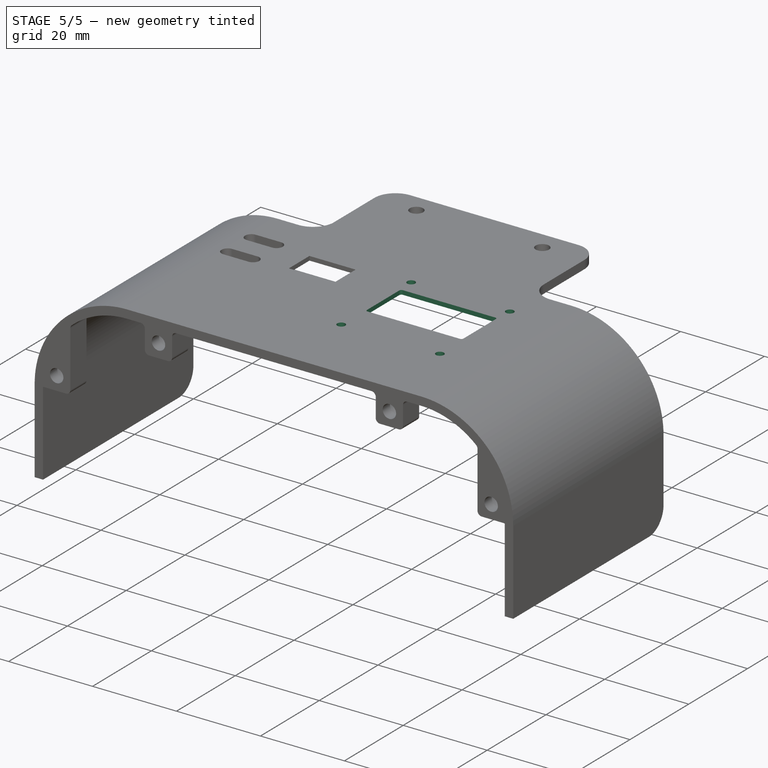
[diagram: stage 5 of 5 — iso view after this stage's code; geometry added in this stage tinted green]
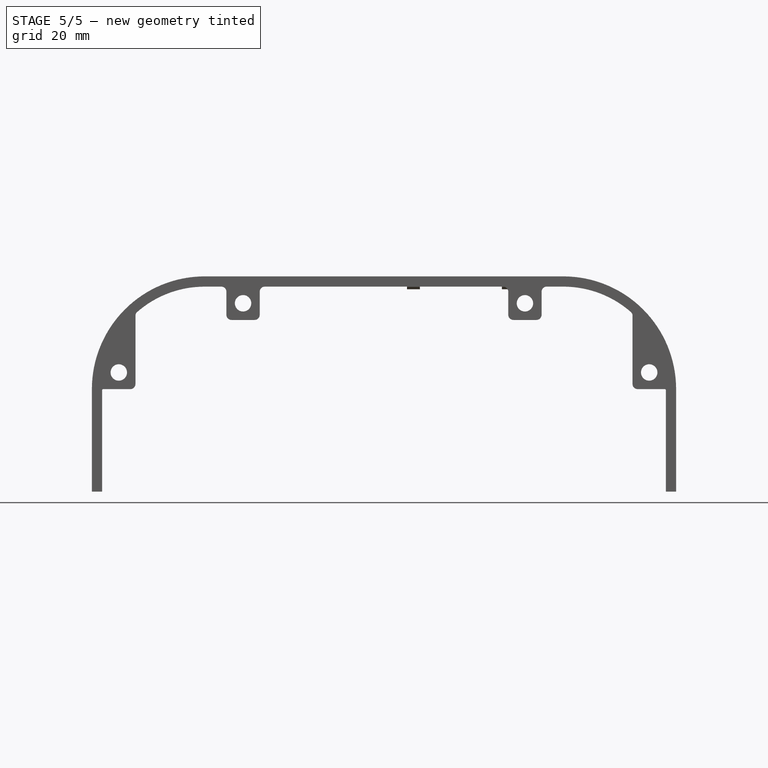
[diagram: stage 5 of 5 — front view after this stage's code; geometry added in this stage tinted green]
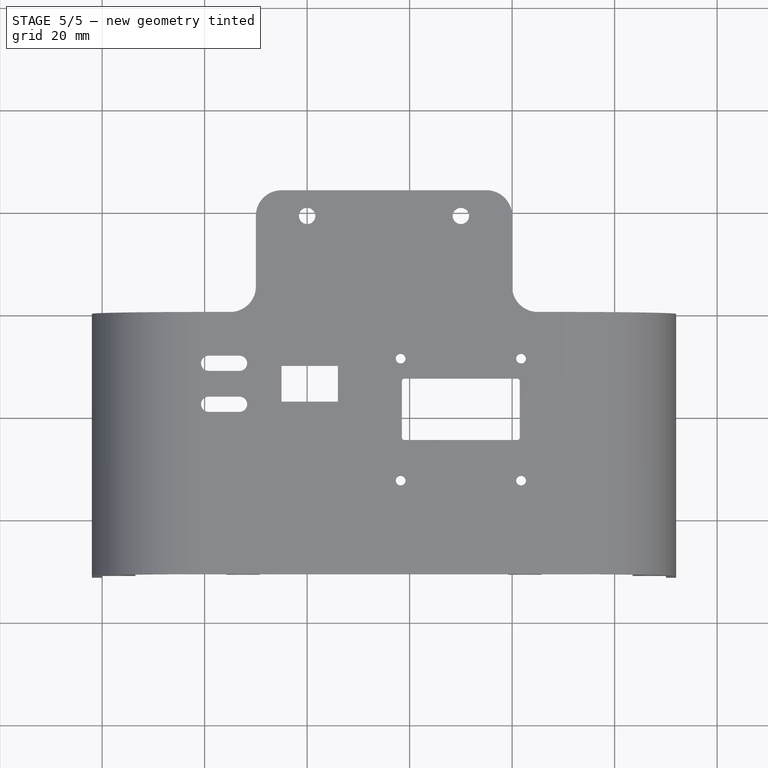
[diagram: stage 5 of 5 — top view after this stage's code; geometry added in this stage tinted green]
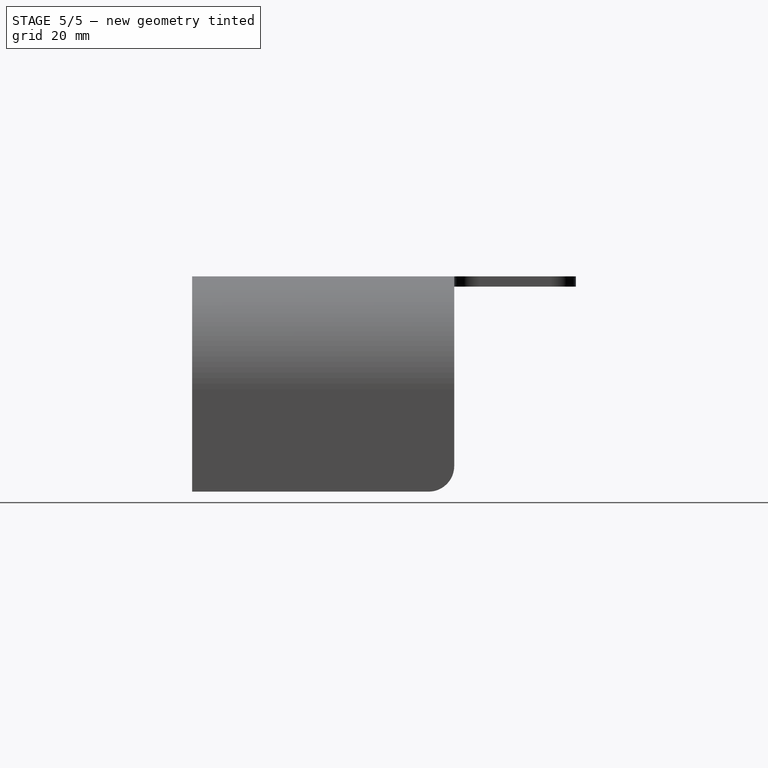
[diagram: stage 5 of 5 — right view after this stage's code; geometry added in this stage tinted green]
FEATURE [Sketcher::SketchObject] Sketch568
  MapMode = 5
  Placement = pos=(0,0,40) rot=(1,0,0;3.14159rad)
  Support = -> [Chamfer096]
  sketch-geometry (8):
    g0: LineSegment [constr] StartX=56 StartY=-125 StartZ=0 EndX=84 EndY=-125 EndZ=0
    g1: LineSegment [constr] StartX=84 StartY=-125 StartZ=0 EndX=84 EndY=-153 EndZ=0
    g2: LineSegment [constr] StartX=84 StartY=-153 StartZ=0 EndX=56 EndY=-153 EndZ=0
    g3: LineSegment [constr] StartX=56 StartY=-153 StartZ=0 EndX=56 EndY=-125 EndZ=0
    g4: Circle CenterX=58.25 CenterY=-127.1 CenterZ=0 NormalX=0 NormalY=0 NormalZ=1 AngleXU=0 Radius=0.95
    g5: Circle CenterX=81.75 CenterY=-127.1 CenterZ=0 NormalX=0 NormalY=0 NormalZ=1 AngleXU=0 Radius=0.95
    g6: Circle CenterX=81.75 CenterY=-150.9 CenterZ=0 NormalX=0 NormalY=0 NormalZ=1 AngleXU=0 Radius=0.95
    g7: Circle CenterX=58.25 CenterY=-150.9 CenterZ=0 NormalX=0 NormalY=0 NormalZ=1 AngleXU=0 Radius=0.95
  constraints (24):
    c: Coincident(g0,g1)
    c: Coincident(g1,g2)
    c: Coincident(g2,g3)
    c: Coincident(g3,g0)
    c: Horizontal(g0)
    c: Horizontal(g2)
    c: Vertical(g1)
    c: Vertical(g3)
    c: Equal(g0,g1)
    c: DistanceX(g0,g0) = 28
    c: DistanceX(g-1,g0) = 56
    c: DistanceY(g0,g-1) = 125
    c: Horizontal(g7,g6)
    c: Horizontal(g4,g5)
    c: Vertical(g5,g6)
    c: Vertical(g7,g4)
    c: DistanceX(g4,g5) = 23.5
    c: Equal(g5,g4)
    c: Equal(g4,g7)
    c: Equal(g7,g6)
    c: Radius(g5) = 0.95
    c: DistanceY(g7,g4) = 23.8
    c: DistanceX(g0,g4) = 2.25
    c: DistanceY(g4,g0) = 2.1
FEATURE [PartDesign::Pocket] Pocket294  label="OLED Screwholes"
  AllowMultiFace = false
  BaseFeature = -> Chamfer096
  Length = 5
  Length2 = 100
  Profile = -> Sketch568
  Type = 0
FEATURE [Sketcher::SketchObject] Sketch569
  MapMode = 5
  Placement = pos=(0,0,42) rot=(0,0,1;0rad)
  Support = -> [Pocket294]
  sketch-geometry (4):
    g0: LineSegment StartX=58.5 StartY=147 StartZ=0 EndX=81.5 EndY=147 EndZ=0
    g1: LineSegment StartX=81.5 StartY=147 StartZ=0 EndX=81.5 EndY=135 EndZ=0
    g2: LineSegment StartX=81.5 StartY=135 StartZ=0 EndX=58.5 EndY=135 EndZ=0
    g3: LineSegment StartX=58.5 StartY=135 StartZ=0 EndX=58.5 EndY=147 EndZ=0
  constraints (12):
    c: Coincident(g0,g1)
    c: Coincident(g1,g2)
    c: Coincident(g2,g3)
    c: Coincident(g3,g0)
    c: Horizontal(g0)
    c: Horizontal(g2)
    c: Vertical(g1)
    c: Vertical(g3)
    c: DistanceX(g-1,g2) = 58.5
    c: DistanceX(g0,g0) = 23
    c: DistanceY(g-1,g0) = 147
    c: DistanceY(g3,g3) = 12
FEATURE [PartDesign::Pocket] Pocket295  label="OLED Screen"
  AllowMultiFace = false
  BaseFeature = -> Pocket294
  Length = 5
  Length2 = 100
  Profile = -> Sketch569
  Type = 0
FEATURE [Sketcher::SketchObject] Sketch570
  MapMode = 5
  Placement = pos=(0,0,40) rot=(1,0,0;3.14159rad)
  Support = -> [Pocket295]
  sketch-geometry (8):
    g0: LineSegment StartX=84.5 StartY=-128.9 StartZ=0 EndX=84.5 EndY=-149.1 EndZ=0
    g1: LineSegment StartX=84.5 StartY=-149.1 StartZ=0 EndX=55.5 EndY=-149.1 EndZ=0
    g2: LineSegment StartX=55.5 StartY=-149.1 StartZ=0 EndX=55.5 EndY=-128.9 EndZ=0
    g3: LineSegment StartX=55.5 StartY=-128.9 StartZ=0 EndX=63 EndY=-128.9 EndZ=0
    g4: LineSegment StartX=63 StartY=-128.9 StartZ=0 EndX=63 EndY=-124.9 EndZ=0
    g5: LineSegment StartX=63 StartY=-124.9 StartZ=0 EndX=77 EndY=-124.9 EndZ=0
    g6: LineSegment StartX=77 StartY=-124.9 StartZ=0 EndX=77 EndY=-128.9 EndZ=0
    g7: LineSegment StartX=77 StartY=-128.9 StartZ=0 EndX=84.5 EndY=-128.9 EndZ=0
  constraints (24):
    c: Coincident(g0,g1)
    c: Coincident(g1,g2)
    c: Horizontal(g1)
    c: Vertical(g0)
    c: Vertical(g2)
    c: Coincident(g2,g3)
    c: Horizontal(g3)
    c: Coincident(g3,g4)
    c: Vertical(g4)
    c: Coincident(g4,g5)
    c: Horizontal(g5)
    c: Coincident(g5,g6)
    c: Vertical(g6)
    c: Coincident(g6,g7)
    c: Coincident(g7,g0)
    c: Horizontal(g7)
    c: Equal(g7,g3)
    c: DistanceX(g1,g1) = 29
    c: DistanceY(g0,g0) = 20.2
    c: Horizontal(g3,g6)
    c: DistanceY(g6,g6) = 4
    c: DistanceX(g5,g5) = 14
    c: DistanceX(g-1,g2) = 55.5
    c: DistanceY(g2,g-1) = 128.9
FEATURE [PartDesign::Pocket] Pocket296  label="OLED PCB"
  AllowMultiFace = false
  BaseFeature = -> Pocket295
  Length = 1
  Length2 = 100
  Profile = -> Sketch570
  Type = 0
FEATURE [PartDesign::Fillet] Fillet105  label="OLED Smooth Screen Corners"
  Base = -> Pocket296 [Edge357,Edge358,Edge355,Edge356]
  BaseFeature = -> Pocket296
  Radius = 0.5
  SupportTransform = false
FEATURE [Sketcher::SketchObject] Sketch571
  MapMode = 5
  Placement = pos=(0,0,40) rot=(1,0,0;3.14159rad)
  Support = -> [Fillet105]
  sketch-geometry (4):
    g0: LineSegment StartX=64.5 StartY=-150 StartZ=0 EndX=75.5 EndY=-150 EndZ=0
    g1: LineSegment StartX=75.5 StartY=-150 StartZ=0 EndX=75.5 EndY=-153 EndZ=0
    g2: LineSegment StartX=75.5 StartY=-153 StartZ=0 EndX=64.5 EndY=-153 EndZ=0
    g3: LineSegment StartX=64.5 StartY=-153 StartZ=0 EndX=64.5 EndY=-150 EndZ=0
  constraints (12):
    c: Coincident(g0,g1)
    c: Coincident(g1,g2)
    c: Coincident(g2,g3)
    c: Coincident(g3,g0)
    c: Horizontal(g0)
    c: Horizontal(g2)
    c: Vertical(g1)
    c: Vertical(g3)
    c: DistanceX(g0,g0) = 11
    c: DistanceY(g3,g3) = 3
    c: DistanceX(g-1,g0) = 64.5
    c: DistanceY(g0,g-1) = 150
FEATURE [PartDesign::Pocket] Pocket297  label="OLED PCB Pins Pocket"
  AllowMultiFace = false
  BaseFeature = -> Fillet105
  Length = 1
  Length2 = 100
  Profile = -> Sketch571
  Type = 0
FEATURE [PartDesign::Body] Body151  label="Top_Cover_Split_Rear_with_OLED"
  Group = -> [Sketch459,Pad232,Thickness005,Pad231,Pad230,Sketch457,Pocket234,Sketch461,Pocket233,Sketch460,Pocket235,Fillet083,Fillet084,Sketch453,Pad229,Fillet082,Fillet085,Sketch463,Pocket230,Sketch456,Pocket228,Sketch455,Pocket227,Sketch458,Pocket232,Sketch454,Pocket229,Sketch462,Pocket231,Sketch567,Pad281,Chamfer096,Sketch568,Pocket294,Sketch569,Pocket295,Sketch570,Pocket296,Fillet105,Sketch571,Pocket297]
  Origin = -> Origin232
  Placement = pos=(55,80,2.25) rot=(0,0.707107,0.707107;3.14159rad)
  Tip = -> Pocket297
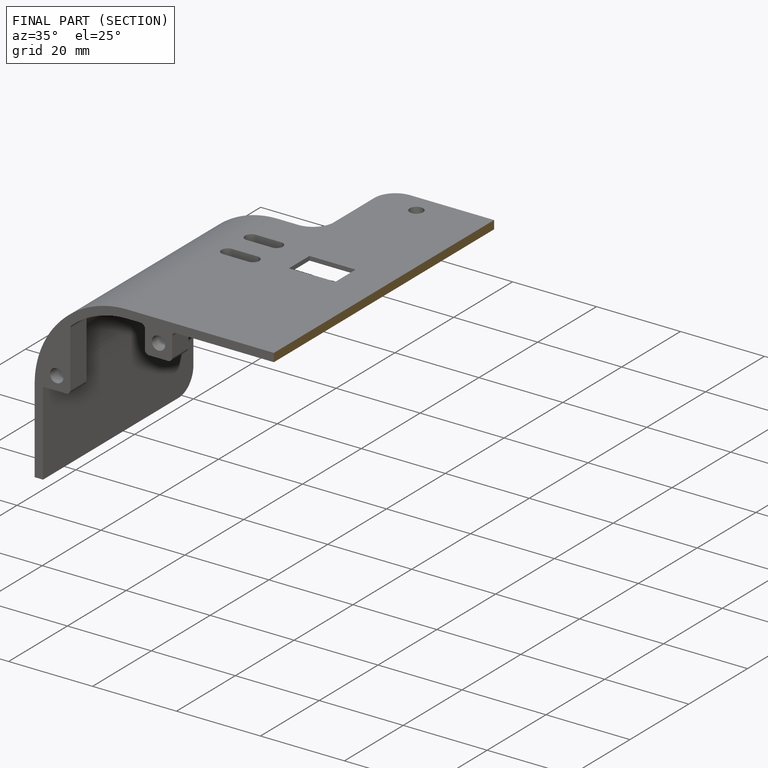
[diagram: finished part — half-section view (interior)]
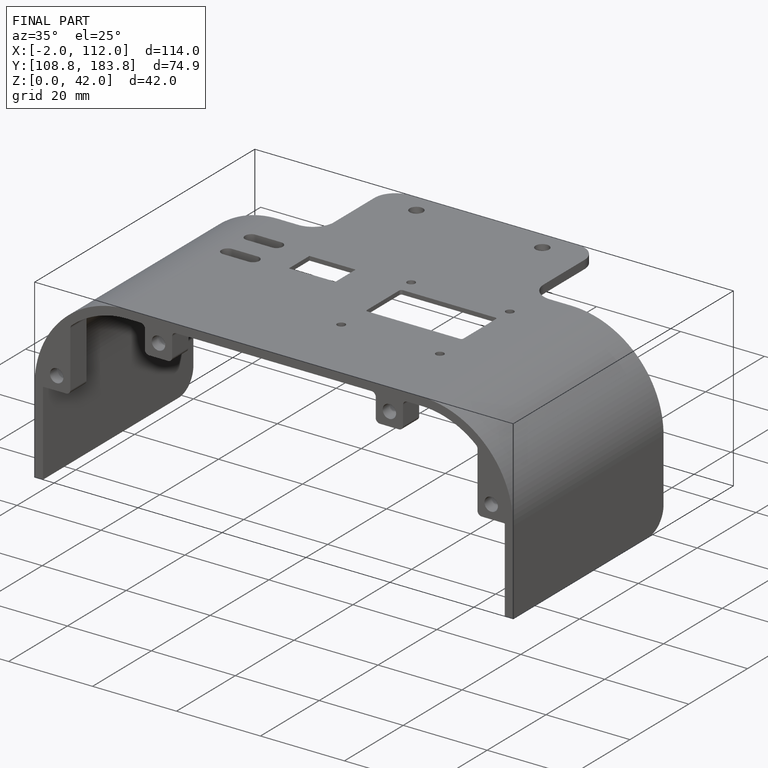
[diagram: finished part — iso view with bounding-box wireframe]
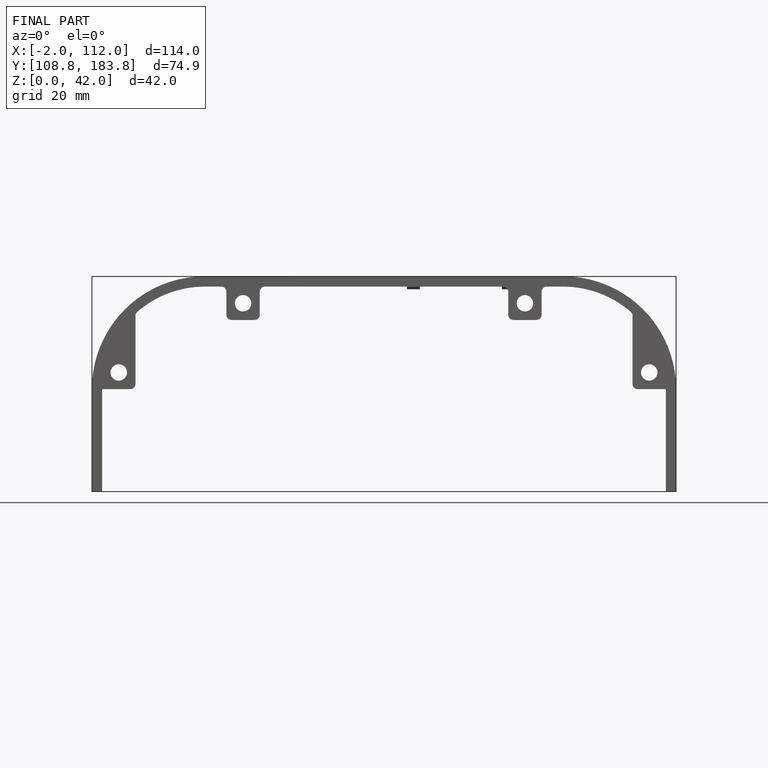
[diagram: finished part — front view with bounding-box wireframe]
